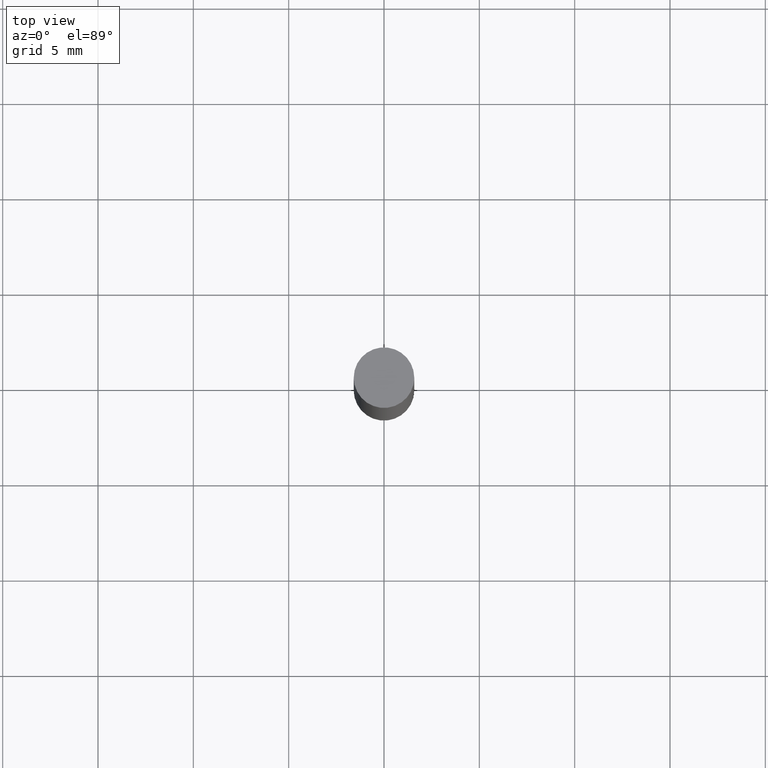
[diagram: clean part render]
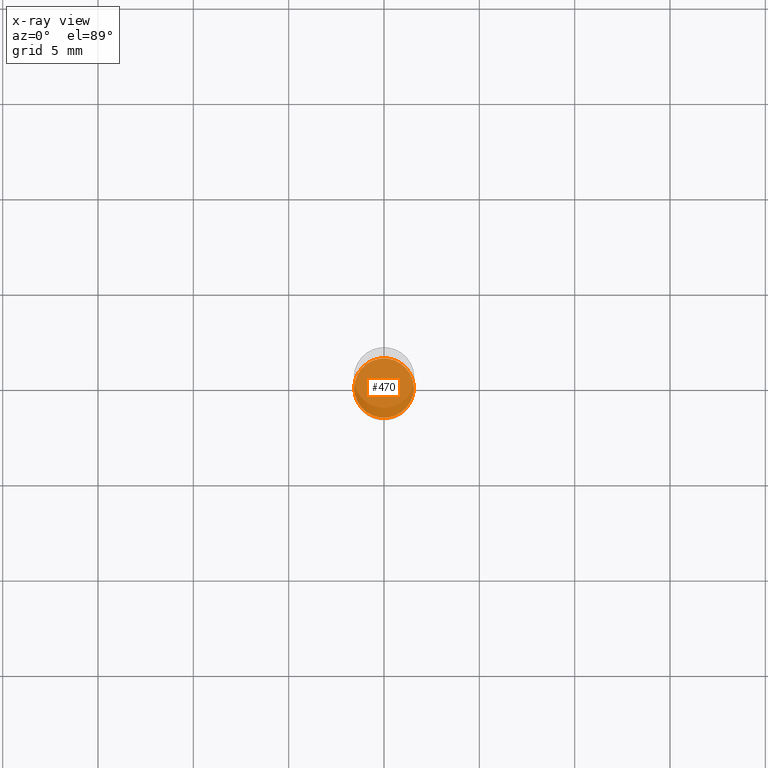
[diagram: x-ray — body ghosted, one internal face saturated and labeled with its STEP entity id]
A machine part, top view, then the same camera in x-ray: the body is ghosted and one INTERNAL B-rep face — a face not visible from any outside direction — is saturated and labeled: STEP entity #470.
In plain terms, the highlighted planar face has unit normal (-0, 0, 1).
Its self-contained STEP definition (entity closure, byte-faithful):
#9 = DIRECTION ( 'NONE',  ( 1.000000000000000000, -6.982962677686265922E-15, 4.876176775795935793E-29 ) ) ;
#19 = ORIENTED_EDGE ( 'NONE', *, *, #532, .F. ) ;
#45 = EDGE_LOOP ( 'NONE', ( #19, #512 ) ) ;
#135 = CARTESIAN_POINT ( 'NONE',  ( -0.06150000000000001299, -3.922069436713247672E-15, -1.250000000000000000 ) ) ;
#159 = DIRECTION ( 'NONE',  ( -2.438088387897960049E-29, 3.491481338843145188E-15, 1.000000000000000000 ) ) ;
#161 = CIRCLE ( 'NONE', #657, 0.06150000000000001299 ) ;
#252 = CIRCLE ( 'NONE', #641, 0.06150000000000001299 ) ;
#254 = CARTESIAN_POINT ( 'NONE',  ( 3.056836007731421306E-29, -4.364351673553932471E-15, -1.250000000000000000 ) ) ;
#314 = DIRECTION ( 'NONE',  ( 1.000000000000000000, -6.982962677686268288E-15, 0.000000000000000000 ) ) ;
#355 = FACE_OUTER_BOUND ( 'NONE', #45, .T. ) ;
#359 = AXIS2_PLACEMENT_3D ( 'NONE', #573, #159, #9 ) ;
#374 = DIRECTION ( 'NONE',  ( 1.000000000000000000, -6.982962677686268288E-15, 0.000000000000000000 ) ) ;
#418 = PLANE ( 'NONE',  #359 ) ;
#421 = CARTESIAN_POINT ( 'NONE',  ( 0.06150000000000001299, -4.793803878231638126E-15, -1.250000000000000000 ) ) ;
#439 = VERTEX_POINT ( 'NONE', #135 ) ;
#470 = ADVANCED_FACE ( 'NONE', ( #355 ), #418, .F. ) ;
#507 = VERTEX_POINT ( 'NONE', #421 ) ;
#512 = ORIENTED_EDGE ( 'NONE', *, *, #621, .F. ) ;
#532 = EDGE_CURVE ( 'NONE', #507, #439, #252, .T. ) ;
#573 = CARTESIAN_POINT ( 'NONE',  ( 3.056836007731421306E-29, -4.364351673553932471E-15, -1.250000000000000000 ) ) ;
#579 = DIRECTION ( 'NONE',  ( -2.445468806185136597E-29, 3.491481338843145583E-15, 1.000000000000000000 ) ) ;
#591 = DIRECTION ( 'NONE',  ( -2.445468806185136597E-29, 3.491481338843145583E-15, 1.000000000000000000 ) ) ;
#621 = EDGE_CURVE ( 'NONE', #439, #507, #161, .T. ) ;
#641 = AXIS2_PLACEMENT_3D ( 'NONE', #254, #579, #314 ) ;
#657 = AXIS2_PLACEMENT_3D ( 'NONE', #659, #591, #374 ) ;
#659 = CARTESIAN_POINT ( 'NONE',  ( 3.056836007731421306E-29, -4.364351673553932471E-15, -1.250000000000000000 ) ) ;